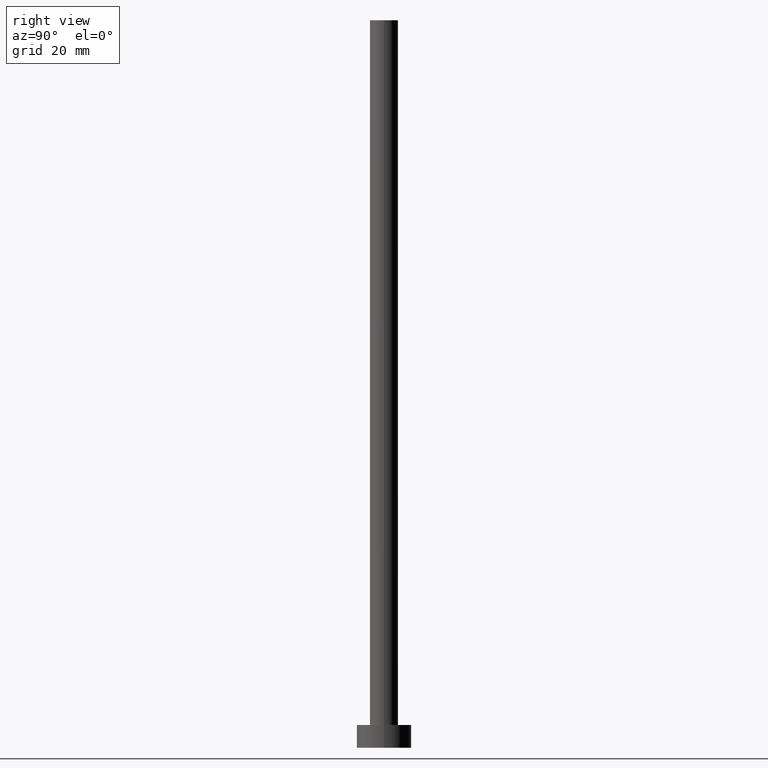
[diagram: clean part render]
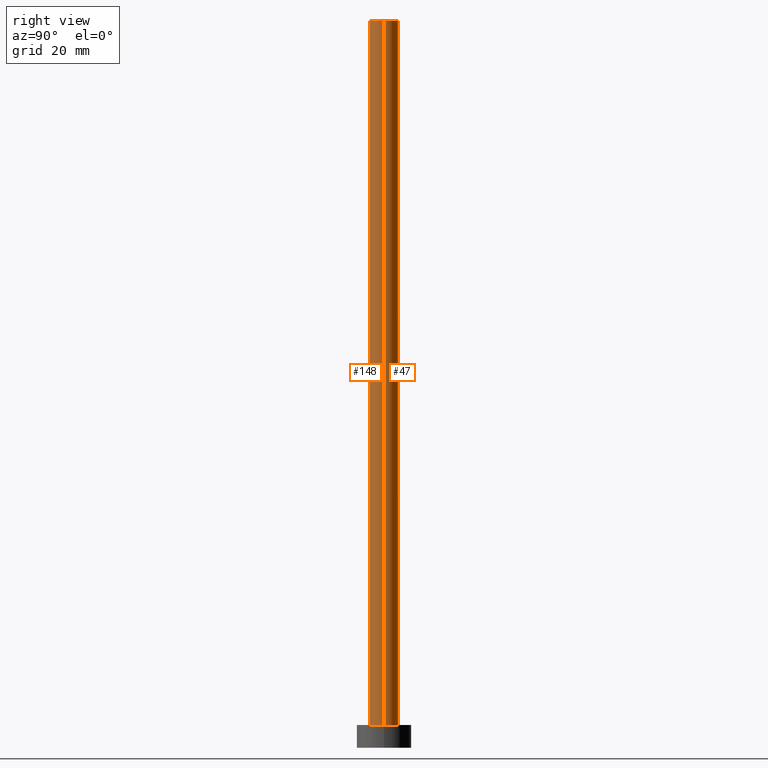
[diagram: same view with one multi-face feature highlighted, each face labeled with its STEP entity id]
A machine part, right view. The highlighted faces form ONE feature: a constant-radius fillet chain: 2 tangent blend faces with common blend radius 3.1 mm. The faces share edges in the B-rep.
Their STEP definitions:
[1] entity #47 (Cylinder):
#3 = VECTOR ( 'NONE', #44, 1000.000000000000000 ) ;
#5 = EDGE_CURVE ( 'NONE', #112, #130, #16, .T. ) ;
#6 = AXIS2_PLACEMENT_3D ( 'NONE', #60, #85, #42 ) ;
#11 = CIRCLE ( 'NONE', #50, 3.100000000000000089 ) ;
#15 = CARTESIAN_POINT ( 'NONE',  ( 0.000000000000000000, 0.000000000000000000, 5.000000000000000000 ) ) ;
#16 = CIRCLE ( 'NONE', #124, 3.100000000000000089 ) ;
#24 = EDGE_CURVE ( 'NONE', #223, #255, #11, .T. ) ;
#25 = CARTESIAN_POINT ( 'NONE',  ( -3.100000000000000089, 0.000000000000000000, 5.000000000000000000 ) ) ;
#42 = DIRECTION ( 'NONE',  ( -1.000000000000000000, 0.000000000000000000, 0.000000000000000000 ) ) ;
#44 = DIRECTION ( 'NONE',  ( -0.000000000000000000, -0.000000000000000000, -1.000000000000000000 ) ) ;
#47 = ADVANCED_FACE ( 'NONE', ( #106 ), #216, .T. ) ;
#50 = AXIS2_PLACEMENT_3D ( 'NONE', #248, #66, #197 ) ;
#60 = CARTESIAN_POINT ( 'NONE',  ( 0.000000000000000000, 0.000000000000000000, 160.0000000000000000 ) ) ;
#66 = DIRECTION ( 'NONE',  ( 0.000000000000000000, 0.000000000000000000, 1.000000000000000000 ) ) ;
#72 = EDGE_CURVE ( 'NONE', #223, #112, #251, .T. ) ;
#85 = DIRECTION ( 'NONE',  ( -0.000000000000000000, -0.000000000000000000, -1.000000000000000000 ) ) ;
#89 = CARTESIAN_POINT ( 'NONE',  ( 3.100000000000000089, 3.796405077356794918E-16, 160.0000000000000000 ) ) ;
#98 = CARTESIAN_POINT ( 'NONE',  ( -3.100000000000000089, 0.000000000000000000, 160.0000000000000000 ) ) ;
#106 = FACE_OUTER_BOUND ( 'NONE', #243, .T. ) ;
#112 = VERTEX_POINT ( 'NONE', #220 ) ;
#114 = ORIENTED_EDGE ( 'NONE', *, *, #5, .T. ) ;
#124 = AXIS2_PLACEMENT_3D ( 'NONE', #15, #170, #246 ) ;
#130 = VERTEX_POINT ( 'NONE', #25 ) ;
#136 = CARTESIAN_POINT ( 'NONE',  ( 3.100000000000000089, 3.796405077356794918E-16, 160.0000000000000000 ) ) ;
#155 = DIRECTION ( 'NONE',  ( -0.000000000000000000, -0.000000000000000000, -1.000000000000000000 ) ) ;
#161 = ORIENTED_EDGE ( 'NONE', *, *, #24, .F. ) ;
#170 = DIRECTION ( 'NONE',  ( 0.000000000000000000, 0.000000000000000000, 1.000000000000000000 ) ) ;
#179 = CARTESIAN_POINT ( 'NONE',  ( -3.100000000000000089, 0.000000000000000000, 160.0000000000000000 ) ) ;
#182 = ORIENTED_EDGE ( 'NONE', *, *, #185, .F. ) ;
#185 = EDGE_CURVE ( 'NONE', #255, #130, #228, .T. ) ;
#197 = DIRECTION ( 'NONE',  ( 1.000000000000000000, 0.000000000000000000, 0.000000000000000000 ) ) ;
#206 = ORIENTED_EDGE ( 'NONE', *, *, #72, .T. ) ;
#216 = CYLINDRICAL_SURFACE ( 'NONE', #6, 3.100000000000000089 ) ;
#219 = VECTOR ( 'NONE', #155, 1000.000000000000000 ) ;
#220 = CARTESIAN_POINT ( 'NONE',  ( 3.100000000000000089, 3.796405077356794918E-16, 5.000000000000000000 ) ) ;
#223 = VERTEX_POINT ( 'NONE', #136 ) ;
#228 = LINE ( 'NONE', #98, #3 ) ;
#243 = EDGE_LOOP ( 'NONE', ( #161, #206, #114, #182 ) ) ;
#246 = DIRECTION ( 'NONE',  ( 1.000000000000000000, 0.000000000000000000, 0.000000000000000000 ) ) ;
#248 = CARTESIAN_POINT ( 'NONE',  ( 0.000000000000000000, 0.000000000000000000, 160.0000000000000000 ) ) ;
#251 = LINE ( 'NONE', #89, #219 ) ;
#255 = VERTEX_POINT ( 'NONE', #179 ) ;
[2] entity #148 (Cylinder):
#3 = VECTOR ( 'NONE', #44, 1000.000000000000000 ) ;
#10 = ORIENTED_EDGE ( 'NONE', *, *, #141, .T. ) ;
#19 = AXIS2_PLACEMENT_3D ( 'NONE', #159, #193, #218 ) ;
#25 = CARTESIAN_POINT ( 'NONE',  ( -3.100000000000000089, 0.000000000000000000, 5.000000000000000000 ) ) ;
#44 = DIRECTION ( 'NONE',  ( -0.000000000000000000, -0.000000000000000000, -1.000000000000000000 ) ) ;
#52 = DIRECTION ( 'NONE',  ( 1.000000000000000000, 0.000000000000000000, 0.000000000000000000 ) ) ;
#57 = CYLINDRICAL_SURFACE ( 'NONE', #19, 3.100000000000000089 ) ;
#59 = FACE_OUTER_BOUND ( 'NONE', #186, .T. ) ;
#72 = EDGE_CURVE ( 'NONE', #223, #112, #251, .T. ) ;
#83 = ORIENTED_EDGE ( 'NONE', *, *, #72, .F. ) ;
#89 = CARTESIAN_POINT ( 'NONE',  ( 3.100000000000000089, 3.796405077356794918E-16, 160.0000000000000000 ) ) ;
#98 = CARTESIAN_POINT ( 'NONE',  ( -3.100000000000000089, 0.000000000000000000, 160.0000000000000000 ) ) ;
#112 = VERTEX_POINT ( 'NONE', #220 ) ;
#121 = AXIS2_PLACEMENT_3D ( 'NONE', #154, #190, #215 ) ;
#122 = CARTESIAN_POINT ( 'NONE',  ( 0.000000000000000000, 0.000000000000000000, 160.0000000000000000 ) ) ;
#130 = VERTEX_POINT ( 'NONE', #25 ) ;
#131 = ORIENTED_EDGE ( 'NONE', *, *, #185, .T. ) ;
#136 = CARTESIAN_POINT ( 'NONE',  ( 3.100000000000000089, 3.796405077356794918E-16, 160.0000000000000000 ) ) ;
#141 = EDGE_CURVE ( 'NONE', #130, #112, #196, .T. ) ;
#148 = ADVANCED_FACE ( 'NONE', ( #59 ), #57, .T. ) ;
#154 = CARTESIAN_POINT ( 'NONE',  ( 0.000000000000000000, 0.000000000000000000, 5.000000000000000000 ) ) ;
#155 = DIRECTION ( 'NONE',  ( -0.000000000000000000, -0.000000000000000000, -1.000000000000000000 ) ) ;
#159 = CARTESIAN_POINT ( 'NONE',  ( 0.000000000000000000, 0.000000000000000000, 160.0000000000000000 ) ) ;
#176 = CIRCLE ( 'NONE', #222, 3.100000000000000089 ) ;
#179 = CARTESIAN_POINT ( 'NONE',  ( -3.100000000000000089, 0.000000000000000000, 160.0000000000000000 ) ) ;
#185 = EDGE_CURVE ( 'NONE', #255, #130, #228, .T. ) ;
#186 = EDGE_LOOP ( 'NONE', ( #83, #207, #131, #10 ) ) ;
#190 = DIRECTION ( 'NONE',  ( 0.000000000000000000, 0.000000000000000000, 1.000000000000000000 ) ) ;
#193 = DIRECTION ( 'NONE',  ( -0.000000000000000000, -0.000000000000000000, -1.000000000000000000 ) ) ;
#196 = CIRCLE ( 'NONE', #121, 3.100000000000000089 ) ;
#201 = DIRECTION ( 'NONE',  ( 0.000000000000000000, 0.000000000000000000, 1.000000000000000000 ) ) ;
#207 = ORIENTED_EDGE ( 'NONE', *, *, #252, .F. ) ;
#215 = DIRECTION ( 'NONE',  ( 1.000000000000000000, 0.000000000000000000, 0.000000000000000000 ) ) ;
#218 = DIRECTION ( 'NONE',  ( -1.000000000000000000, 0.000000000000000000, 0.000000000000000000 ) ) ;
#219 = VECTOR ( 'NONE', #155, 1000.000000000000000 ) ;
#220 = CARTESIAN_POINT ( 'NONE',  ( 3.100000000000000089, 3.796405077356794918E-16, 5.000000000000000000 ) ) ;
#222 = AXIS2_PLACEMENT_3D ( 'NONE', #122, #201, #52 ) ;
#223 = VERTEX_POINT ( 'NONE', #136 ) ;
#228 = LINE ( 'NONE', #98, #3 ) ;
#251 = LINE ( 'NONE', #89, #219 ) ;
#252 = EDGE_CURVE ( 'NONE', #255, #223, #176, .T. ) ;
#255 = VERTEX_POINT ( 'NONE', #179 ) ;